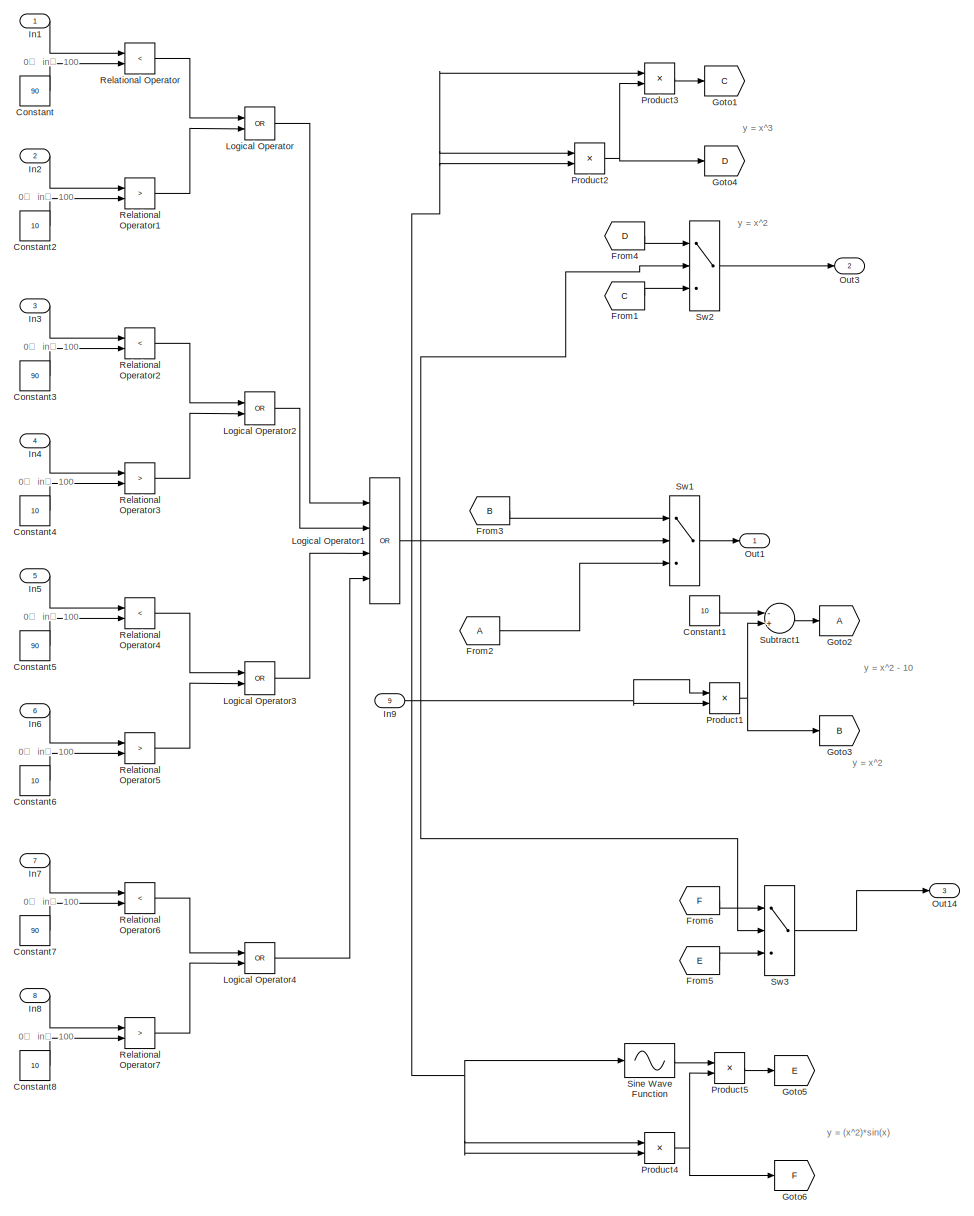
[diagram: root canvas - part 1/1, most of the canvas]
MODEL slx_b504dee3db79
KIND model
BLOCK [Constant] Constant
  Value = 90
BLOCK [Constant] Constant1
  OutDataTypeStr = Inherit: Inherit via back propagation
  Value = 10
BLOCK [Constant] Constant2
  Value = 10
BLOCK [Constant] Constant3
  Value = 90
BLOCK [Constant] Constant4
  Value = 10
BLOCK [Constant] Constant5
  Value = 90
BLOCK [Constant] Constant6
  Value = 10
BLOCK [Constant] Constant7
  Value = 90
BLOCK [Constant] Constant8
  Value = 10
BLOCK [From] From1
  GotoTag = C
BLOCK [From] From2
BLOCK [From] From3
  GotoTag = B
BLOCK [From] From4
  GotoTag = D
BLOCK [From] From5
  GotoTag = E
BLOCK [From] From6
  GotoTag = F
BLOCK [Goto] Goto1
  GotoTag = C
BLOCK [Goto] Goto2
BLOCK [Goto] Goto3
  GotoTag = B
BLOCK [Goto] Goto4
  GotoTag = D
BLOCK [Goto] Goto5
  GotoTag = E
BLOCK [Goto] Goto6
  GotoTag = F
BLOCK [Inport] In1
  IconDisplay = Port number
BLOCK [Inport] In2
  IconDisplay = Port number
  Port = 2
BLOCK [Inport] In3
  IconDisplay = Port number
  Port = 3
BLOCK [Inport] In4
  IconDisplay = Port number
  Port = 4
BLOCK [Inport] In5
  IconDisplay = Port number
  Port = 5
BLOCK [Inport] In6
  IconDisplay = Port number
  Port = 6
BLOCK [Inport] In7
  IconDisplay = Port number
  Port = 7
BLOCK [Inport] In8
  IconDisplay = Port number
  Port = 8
BLOCK [Inport] In9
  IconDisplay = Port number
  OutDataTypeStr = double
  Port = 9
BLOCK [Logic] Logical Operator
  AllPortsSameDT = off
  Operator = OR
  OutDataTypeStr = boolean
  Ports = [2, 1]
BLOCK [Logic] Logical Operator1
  AllPortsSameDT = off
  Inputs = 4
  Operator = OR
  OutDataTypeStr = boolean
  Ports = [4, 1]
BLOCK [Logic] Logical Operator2
  AllPortsSameDT = off
  Operator = OR
  OutDataTypeStr = boolean
  Ports = [2, 1]
BLOCK [Logic] Logical Operator3
  AllPortsSameDT = off
  Operator = OR
  OutDataTypeStr = boolean
  Ports = [2, 1]
BLOCK [Logic] Logical Operator4
  AllPortsSameDT = off
  Operator = OR
  OutDataTypeStr = boolean
  Ports = [2, 1]
BLOCK [Outport] Out1
  IconDisplay = Port number
BLOCK [Outport] Out14
  IconDisplay = Port number
  Port = 3
BLOCK [Outport] Out3
  IconDisplay = Port number
  Port = 2
BLOCK [Product] Product1
  InputSameDT = off
  OutDataTypeStr = double
  Ports = [2, 1]
  SaturateOnIntegerOverflow = off
BLOCK [Product] Product2
  InputSameDT = off
  OutDataTypeStr = Inherit: Inherit via internal rule
  Ports = [2, 1]
  SaturateOnIntegerOverflow = off
BLOCK [Product] Product3
  InputSameDT = off
  OutDataTypeStr = Inherit: Inherit via internal rule
  Ports = [2, 1]
  SaturateOnIntegerOverflow = off
BLOCK [Product] Product4
  InputSameDT = off
  OutDataTypeStr = Inherit: Inherit via internal rule
  Ports = [2, 1]
  SaturateOnIntegerOverflow = off
BLOCK [Product] Product5
  InputSameDT = off
  OutDataTypeStr = Inherit: Inherit via internal rule
  Ports = [2, 1]
  SaturateOnIntegerOverflow = off
BLOCK [RelationalOperator] Relational Operator
  InputSameDT = off
  Operator = <
  OutDataTypeStr = boolean
  Ports = [2, 1]
BLOCK [RelationalOperator] Relational Operator1
  InputSameDT = off
  Operator = >
  OutDataTypeStr = boolean
  Ports = [2, 1]
BLOCK [RelationalOperator] Relational Operator2
  InputSameDT = off
  Operator = <
  OutDataTypeStr = boolean
  Ports = [2, 1]
BLOCK [RelationalOperator] Relational Operator3
  InputSameDT = off
  Operator = >
  OutDataTypeStr = boolean
  Ports = [2, 1]
BLOCK [RelationalOperator] Relational Operator4
  InputSameDT = off
  Operator = <
  OutDataTypeStr = boolean
  Ports = [2, 1]
BLOCK [RelationalOperator] Relational Operator5
  InputSameDT = off
  Operator = >
  OutDataTypeStr = boolean
  Ports = [2, 1]
BLOCK [RelationalOperator] Relational Operator6
  InputSameDT = off
  Operator = <
  OutDataTypeStr = boolean
  Ports = [2, 1]
BLOCK [RelationalOperator] Relational Operator7
  InputSameDT = off
  Operator = >
  OutDataTypeStr = boolean
  Ports = [2, 1]
BLOCK [Sin] Sine Wave Function
  Ports = [1, 1]
  SampleTime = 0
  TimeSource = Use external signal
BLOCK [Sum] Subtract1
  AccumDataTypeStr = Inherit: Same as first input
  InputSameDT = off
  Inputs = -+
  OutDataTypeStr = Inherit: Inherit via internal rule
  Ports = [2, 1]
  SaturateOnIntegerOverflow = off
BLOCK [Switch] Sw1
  OutDataTypeStr = double
  RndMeth = Simplest
  SaturateOnIntegerOverflow = off
  Threshold = 0.5
BLOCK [Switch] Sw2
  RndMeth = Simplest
  SaturateOnIntegerOverflow = off
  Threshold = 0.5
BLOCK [Switch] Sw3
  RndMeth = Simplest
  SaturateOnIntegerOverflow = off
  Threshold = 0.5
ANNOTATION (root): 0 in 100
ANNOTATION (root): y = (x^2)*sin(x)
ANNOTATION (root): y = x^2
ANNOTATION (root): y = x^2 - 10
ANNOTATION (root): y = x^3
LINE Constant1:1 -> Subtract1:1
LINE Constant2:1 -> Relational Operator1:2
LINE Constant3:1 -> Relational Operator2:2
LINE Constant4:1 -> Relational Operator3:2
LINE Constant5:1 -> Relational Operator4:2
LINE Constant6:1 -> Relational Operator5:2
LINE Constant7:1 -> Relational Operator6:2
LINE Constant8:1 -> Relational Operator7:2
LINE Constant:1 -> Relational Operator:2
LINE From1:1 -> Sw2:3
LINE From2:1 -> Sw1:3
LINE From3:1 -> Sw1:1
LINE From4:1 -> Sw2:1
LINE From5:1 -> Sw3:3
LINE From6:1 -> Sw3:1
LINE In1:1 -> Relational Operator:1
LINE In2:1 -> Relational Operator1:1
LINE In3:1 -> Relational Operator2:1
LINE In4:1 -> Relational Operator3:1
LINE In5:1 -> Relational Operator4:1
LINE In6:1 -> Relational Operator5:1
LINE In7:1 -> Relational Operator6:1
LINE In8:1 -> Relational Operator7:1
NET In9:1 -> Product1:1, Product1:2, Product2:1, Product2:2, Product3:1, Product4:1, Product4:2, Sine Wave Function:1
NET Logical Operator1:1 -> Sw1:2, Sw2:2, Sw3:2
LINE Logical Operator2:1 -> Logical Operator1:2
LINE Logical Operator3:1 -> Logical Operator1:3
LINE Logical Operator4:1 -> Logical Operator1:4
LINE Logical Operator:1 -> Logical Operator1:1
NET Product1:1 -> Goto3:1, Subtract1:2
NET Product2:1 -> Goto4:1, Product3:2
LINE Product3:1 -> Goto1:1
NET Product4:1 -> Goto6:1, Product5:2
LINE Product5:1 -> Goto5:1
LINE Relational Operator1:1 -> Logical Operator:2
LINE Relational Operator2:1 -> Logical Operator2:1
LINE Relational Operator3:1 -> Logical Operator2:2
LINE Relational Operator4:1 -> Logical Operator3:1
LINE Relational Operator5:1 -> Logical Operator3:2
LINE Relational Operator6:1 -> Logical Operator4:1
LINE Relational Operator7:1 -> Logical Operator4:2
LINE Relational Operator:1 -> Logical Operator:1
LINE Sine Wave Function:1 -> Product5:1
LINE Subtract1:1 -> Goto2:1
LINE Sw1:1 -> Out1:1
LINE Sw2:1 -> Out3:1
LINE Sw3:1 -> Out14:1
note: NET lines group one-source signal fan-out (src -> all destinations, sorted); 1:1 wires keep LINE
